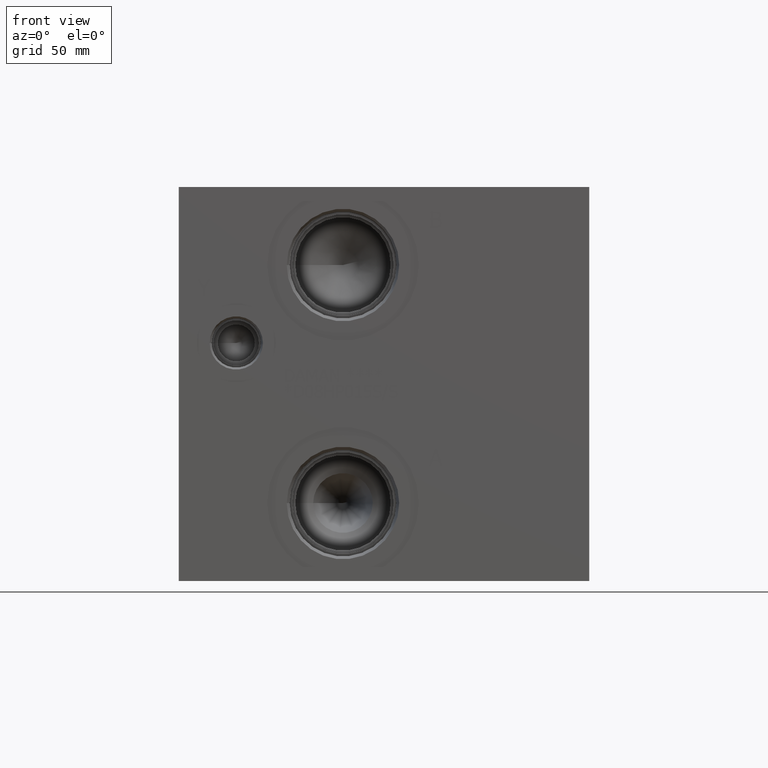
[diagram: clean part render]
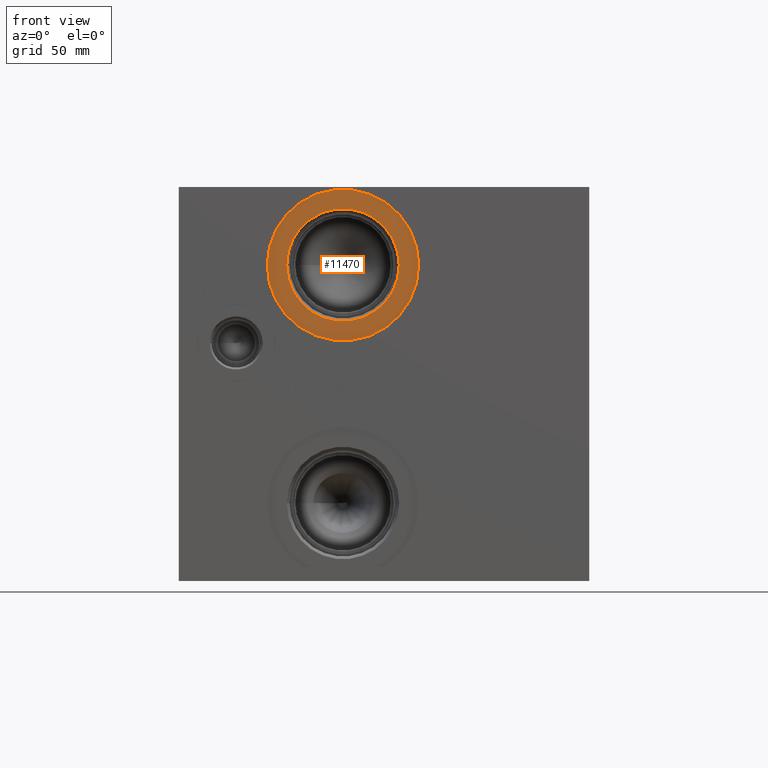
[diagram: same view with one face highlighted and labeled with its STEP entity id]
A machine part, front view. The second image highlights one B-rep face of the part: STEP entity #11470.
In plain terms, the highlighted planar face has unit normal (0, 1, 0).
Its self-contained STEP definition (entity closure, byte-faithful):
#306=CIRCLE('',#12111,29.2862);
#307=CIRCLE('',#12112,29.2862);
#308=CIRCLE('',#12114,21.7551);
#309=CIRCLE('',#12115,21.7551);
#457=FACE_BOUND('',#2027,.T.);
#800=PLANE('',#12113);
#1359=FACE_OUTER_BOUND('',#2026,.T.);
#2026=EDGE_LOOP('',(#10089,#10090));
#2027=EDGE_LOOP('',(#10091,#10092));
#5485=VERTEX_POINT('',#19583);
#5486=VERTEX_POINT('',#19585);
#5487=VERTEX_POINT('',#19589);
#5488=VERTEX_POINT('',#19590);
#7052=EDGE_CURVE('',#5485,#5486,#306,.T.);
#7053=EDGE_CURVE('',#5486,#5485,#307,.T.);
#7054=EDGE_CURVE('',#5487,#5488,#308,.T.);
#7055=EDGE_CURVE('',#5488,#5487,#309,.T.);
#10089=ORIENTED_EDGE('',*,*,#7053,.F.);
#10090=ORIENTED_EDGE('',*,*,#7052,.F.);
#10091=ORIENTED_EDGE('',*,*,#7054,.T.);
#10092=ORIENTED_EDGE('',*,*,#7055,.T.);
#11470=ADVANCED_FACE('',(#1359,#457),#800,.F.);
#12111=AXIS2_PLACEMENT_3D('',#19586,#14411,#14412);
#12112=AXIS2_PLACEMENT_3D('',#19587,#14413,#14414);
#12113=AXIS2_PLACEMENT_3D('',#19588,#14415,#14416);
#12114=AXIS2_PLACEMENT_3D('',#19591,#14417,#14418);
#12115=AXIS2_PLACEMENT_3D('',#19592,#14419,#14420);
#14411=DIRECTION('center_axis',(0.,1.,0.));
#14412=DIRECTION('ref_axis',(1.,0.,0.));
#14413=DIRECTION('center_axis',(0.,1.,0.));
#14414=DIRECTION('ref_axis',(1.,0.,0.));
#14415=DIRECTION('center_axis',(0.,1.,0.));
#14416=DIRECTION('ref_axis',(0.,0.,1.));
#14417=DIRECTION('center_axis',(0.,1.,0.));
#14418=DIRECTION('ref_axis',(1.,0.,0.));
#14419=DIRECTION('center_axis',(0.,1.,0.));
#14420=DIRECTION('ref_axis',(1.,0.,0.));
#19583=CARTESIAN_POINT('',(34.2138,0.7874,122.2248));
#19585=CARTESIAN_POINT('',(92.7862,0.7874,122.2248));
#19586=CARTESIAN_POINT('Origin',(63.5,0.7874,122.2248));
#19587=CARTESIAN_POINT('Origin',(63.5,0.7874,122.2248));
#19588=CARTESIAN_POINT('Origin',(85.2551,0.7874,122.2248));
#19589=CARTESIAN_POINT('',(85.2551,0.7874,122.2248));
#19590=CARTESIAN_POINT('',(41.7449,0.7874,122.2248));
#19591=CARTESIAN_POINT('Origin',(63.5,0.7874,122.2248));
#19592=CARTESIAN_POINT('Origin',(63.5,0.7874,122.2248));